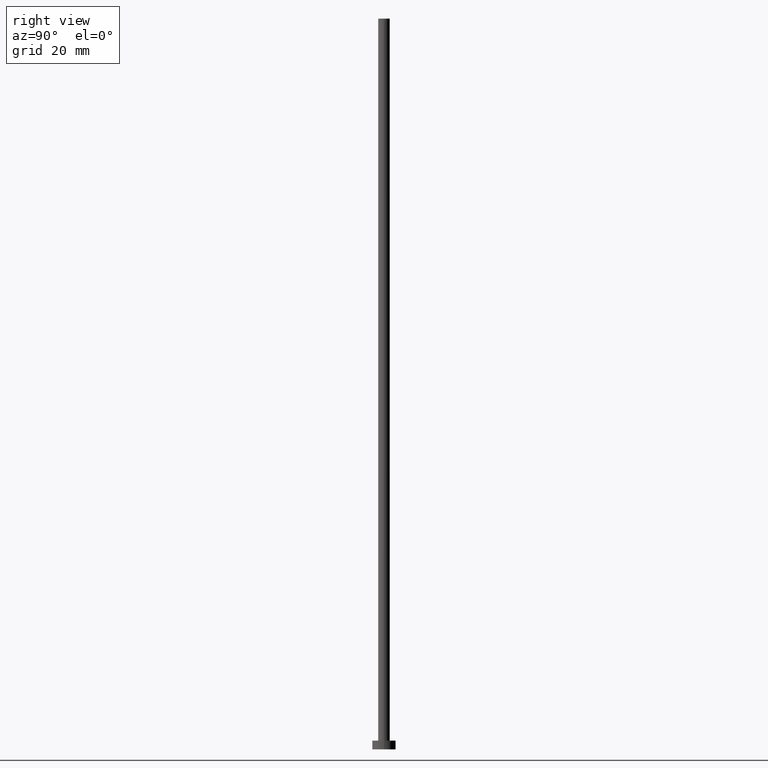
[diagram: clean part render]
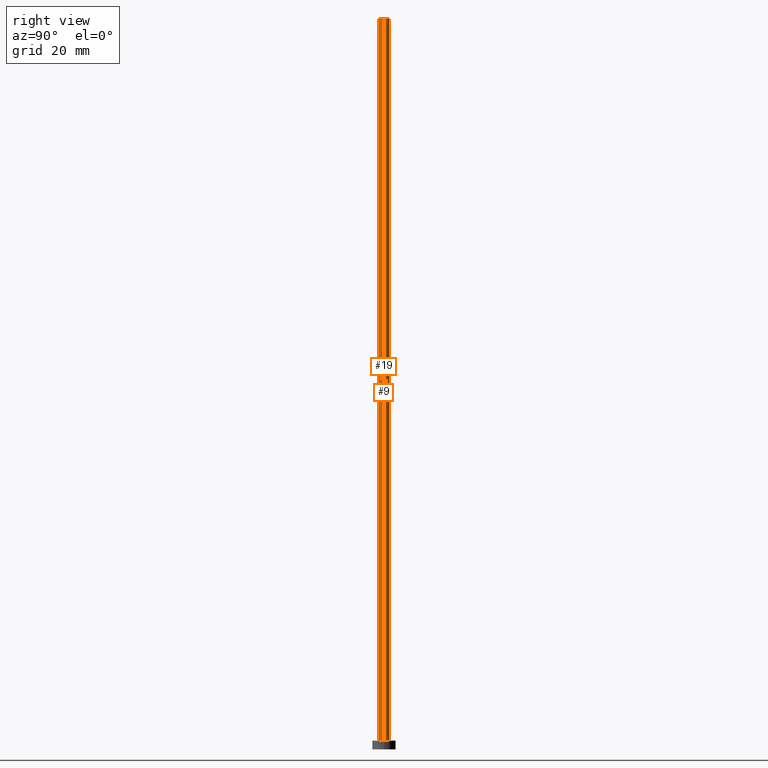
[diagram: same view with one multi-face feature highlighted, each face labeled with its STEP entity id]
A machine part, right view. The highlighted faces form ONE feature: a constant-radius fillet chain: 2 tangent blend faces with common blend radius 2 mm. The faces share edges in the B-rep.
Their STEP definitions:
[1] entity #19 (Cylinder):
#2 = DIRECTION ( 'NONE',  ( 1.000000000000000000, 0.000000000000000000, 0.000000000000000000 ) ) ;
#13 = ORIENTED_EDGE ( 'NONE', *, *, #154, .T. ) ;
#19 = ADVANCED_FACE ( 'NONE', ( #191 ), #92, .T. ) ;
#32 = VERTEX_POINT ( 'NONE', #216 ) ;
#37 = VECTOR ( 'NONE', #62, 1000.000000000000000 ) ;
#38 = CARTESIAN_POINT ( 'NONE',  ( -2.000000000000000000, 0.000000000000000000, 250.0000000000000000 ) ) ;
#41 = CARTESIAN_POINT ( 'NONE',  ( 2.000000000000000000, 2.449293598294706414E-16, 250.0000000000000000 ) ) ;
#48 = VECTOR ( 'NONE', #162, 1000.000000000000000 ) ;
#50 = AXIS2_PLACEMENT_3D ( 'NONE', #80, #100, #2 ) ;
#54 = EDGE_LOOP ( 'NONE', ( #73, #76, #13, #147 ) ) ;
#62 = DIRECTION ( 'NONE',  ( -0.000000000000000000, -0.000000000000000000, -1.000000000000000000 ) ) ;
#64 = AXIS2_PLACEMENT_3D ( 'NONE', #217, #77, #201 ) ;
#73 = ORIENTED_EDGE ( 'NONE', *, *, #139, .F. ) ;
#75 = CARTESIAN_POINT ( 'NONE',  ( 0.000000000000000000, 0.000000000000000000, 250.0000000000000000 ) ) ;
#76 = ORIENTED_EDGE ( 'NONE', *, *, #79, .F. ) ;
#77 = DIRECTION ( 'NONE',  ( 0.000000000000000000, 0.000000000000000000, 1.000000000000000000 ) ) ;
#78 = CARTESIAN_POINT ( 'NONE',  ( -2.000000000000000000, 0.000000000000000000, 3.000000000000000000 ) ) ;
#79 = EDGE_CURVE ( 'NONE', #32, #211, #159, .T. ) ;
#80 = CARTESIAN_POINT ( 'NONE',  ( 0.000000000000000000, 0.000000000000000000, 3.000000000000000000 ) ) ;
#81 = DIRECTION ( 'NONE',  ( -0.000000000000000000, -0.000000000000000000, -1.000000000000000000 ) ) ;
#82 = CARTESIAN_POINT ( 'NONE',  ( 2.000000000000000000, 2.449293598294706414E-16, 250.0000000000000000 ) ) ;
#92 = CYLINDRICAL_SURFACE ( 'NONE', #245, 2.000000000000000000 ) ;
#100 = DIRECTION ( 'NONE',  ( 0.000000000000000000, 0.000000000000000000, 1.000000000000000000 ) ) ;
#125 = CIRCLE ( 'NONE', #50, 2.000000000000000000 ) ;
#128 = EDGE_CURVE ( 'NONE', #208, #190, #125, .T. ) ;
#139 = EDGE_CURVE ( 'NONE', #211, #190, #215, .T. ) ;
#147 = ORIENTED_EDGE ( 'NONE', *, *, #128, .T. ) ;
#154 = EDGE_CURVE ( 'NONE', #32, #208, #214, .T. ) ;
#159 = CIRCLE ( 'NONE', #64, 2.000000000000000000 ) ;
#162 = DIRECTION ( 'NONE',  ( -0.000000000000000000, -0.000000000000000000, -1.000000000000000000 ) ) ;
#176 = DIRECTION ( 'NONE',  ( -1.000000000000000000, 0.000000000000000000, 0.000000000000000000 ) ) ;
#178 = CARTESIAN_POINT ( 'NONE',  ( 2.000000000000000000, 2.449293598294706414E-16, 3.000000000000000000 ) ) ;
#190 = VERTEX_POINT ( 'NONE', #178 ) ;
#191 = FACE_OUTER_BOUND ( 'NONE', #54, .T. ) ;
#201 = DIRECTION ( 'NONE',  ( 1.000000000000000000, 0.000000000000000000, 0.000000000000000000 ) ) ;
#208 = VERTEX_POINT ( 'NONE', #78 ) ;
#211 = VERTEX_POINT ( 'NONE', #41 ) ;
#214 = LINE ( 'NONE', #38, #37 ) ;
#215 = LINE ( 'NONE', #82, #48 ) ;
#216 = CARTESIAN_POINT ( 'NONE',  ( -2.000000000000000000, 0.000000000000000000, 250.0000000000000000 ) ) ;
#217 = CARTESIAN_POINT ( 'NONE',  ( 0.000000000000000000, 0.000000000000000000, 250.0000000000000000 ) ) ;
#245 = AXIS2_PLACEMENT_3D ( 'NONE', #75, #81, #176 ) ;
[2] entity #9 (Cylinder):
#9 = ADVANCED_FACE ( 'NONE', ( #72 ), #151, .T. ) ;
#11 = EDGE_LOOP ( 'NONE', ( #129, #175, #130, #110 ) ) ;
#14 = DIRECTION ( 'NONE',  ( -1.000000000000000000, 0.000000000000000000, 0.000000000000000000 ) ) ;
#27 = EDGE_CURVE ( 'NONE', #190, #208, #68, .T. ) ;
#32 = VERTEX_POINT ( 'NONE', #216 ) ;
#36 = CARTESIAN_POINT ( 'NONE',  ( 0.000000000000000000, 0.000000000000000000, 250.0000000000000000 ) ) ;
#37 = VECTOR ( 'NONE', #62, 1000.000000000000000 ) ;
#38 = CARTESIAN_POINT ( 'NONE',  ( -2.000000000000000000, 0.000000000000000000, 250.0000000000000000 ) ) ;
#41 = CARTESIAN_POINT ( 'NONE',  ( 2.000000000000000000, 2.449293598294706414E-16, 250.0000000000000000 ) ) ;
#44 = DIRECTION ( 'NONE',  ( 1.000000000000000000, 0.000000000000000000, 0.000000000000000000 ) ) ;
#48 = VECTOR ( 'NONE', #162, 1000.000000000000000 ) ;
#58 = EDGE_CURVE ( 'NONE', #211, #32, #121, .T. ) ;
#62 = DIRECTION ( 'NONE',  ( -0.000000000000000000, -0.000000000000000000, -1.000000000000000000 ) ) ;
#68 = CIRCLE ( 'NONE', #169, 2.000000000000000000 ) ;
#72 = FACE_OUTER_BOUND ( 'NONE', #11, .T. ) ;
#78 = CARTESIAN_POINT ( 'NONE',  ( -2.000000000000000000, 0.000000000000000000, 3.000000000000000000 ) ) ;
#82 = CARTESIAN_POINT ( 'NONE',  ( 2.000000000000000000, 2.449293598294706414E-16, 250.0000000000000000 ) ) ;
#95 = AXIS2_PLACEMENT_3D ( 'NONE', #36, #112, #14 ) ;
#110 = ORIENTED_EDGE ( 'NONE', *, *, #154, .F. ) ;
#112 = DIRECTION ( 'NONE',  ( -0.000000000000000000, -0.000000000000000000, -1.000000000000000000 ) ) ;
#117 = CARTESIAN_POINT ( 'NONE',  ( 0.000000000000000000, 0.000000000000000000, 3.000000000000000000 ) ) ;
#121 = CIRCLE ( 'NONE', #186, 2.000000000000000000 ) ;
#129 = ORIENTED_EDGE ( 'NONE', *, *, #58, .F. ) ;
#130 = ORIENTED_EDGE ( 'NONE', *, *, #27, .T. ) ;
#139 = EDGE_CURVE ( 'NONE', #211, #190, #215, .T. ) ;
#151 = CYLINDRICAL_SURFACE ( 'NONE', #95, 2.000000000000000000 ) ;
#154 = EDGE_CURVE ( 'NONE', #32, #208, #214, .T. ) ;
#162 = DIRECTION ( 'NONE',  ( -0.000000000000000000, -0.000000000000000000, -1.000000000000000000 ) ) ;
#169 = AXIS2_PLACEMENT_3D ( 'NONE', #117, #233, #44 ) ;
#175 = ORIENTED_EDGE ( 'NONE', *, *, #139, .T. ) ;
#178 = CARTESIAN_POINT ( 'NONE',  ( 2.000000000000000000, 2.449293598294706414E-16, 3.000000000000000000 ) ) ;
#182 = DIRECTION ( 'NONE',  ( 1.000000000000000000, 0.000000000000000000, 0.000000000000000000 ) ) ;
#186 = AXIS2_PLACEMENT_3D ( 'NONE', #232, #194, #182 ) ;
#190 = VERTEX_POINT ( 'NONE', #178 ) ;
#194 = DIRECTION ( 'NONE',  ( 0.000000000000000000, 0.000000000000000000, 1.000000000000000000 ) ) ;
#208 = VERTEX_POINT ( 'NONE', #78 ) ;
#211 = VERTEX_POINT ( 'NONE', #41 ) ;
#214 = LINE ( 'NONE', #38, #37 ) ;
#215 = LINE ( 'NONE', #82, #48 ) ;
#216 = CARTESIAN_POINT ( 'NONE',  ( -2.000000000000000000, 0.000000000000000000, 250.0000000000000000 ) ) ;
#232 = CARTESIAN_POINT ( 'NONE',  ( 0.000000000000000000, 0.000000000000000000, 250.0000000000000000 ) ) ;
#233 = DIRECTION ( 'NONE',  ( 0.000000000000000000, 0.000000000000000000, 1.000000000000000000 ) ) ;